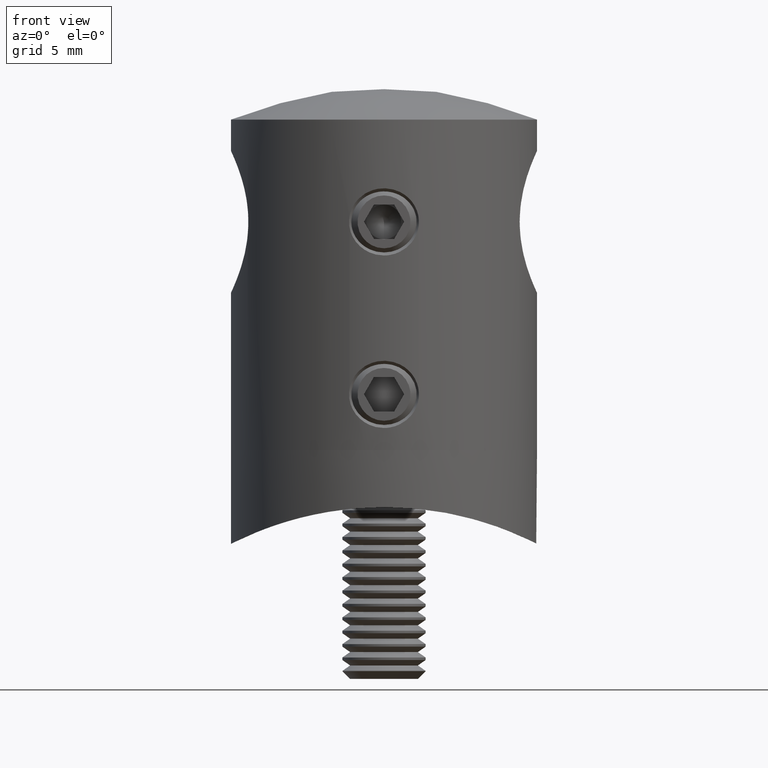
[diagram: clean part render]
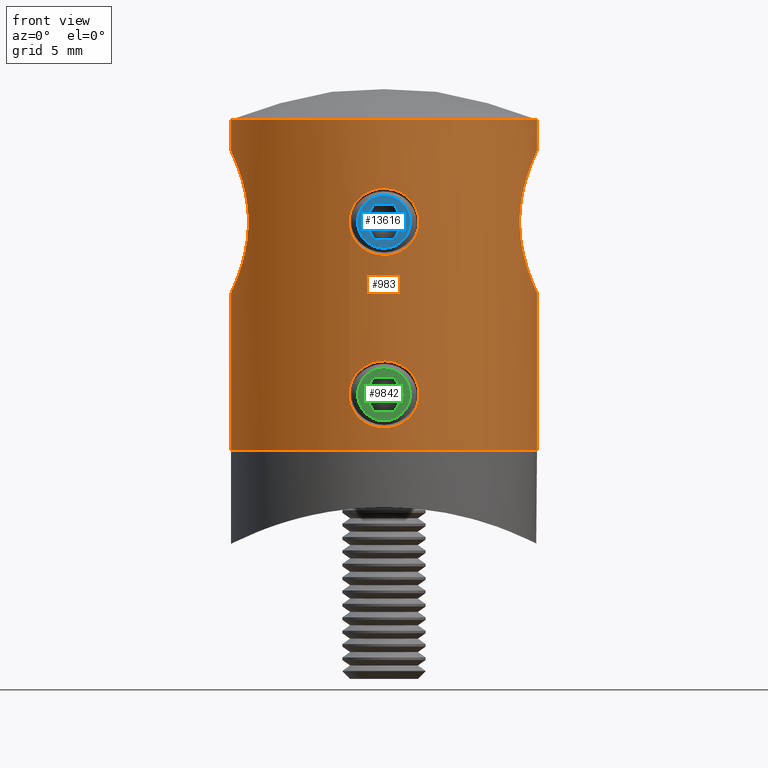
[diagram: same view with three faces highlighted in distinct colors, each labeled with its STEP entity id]
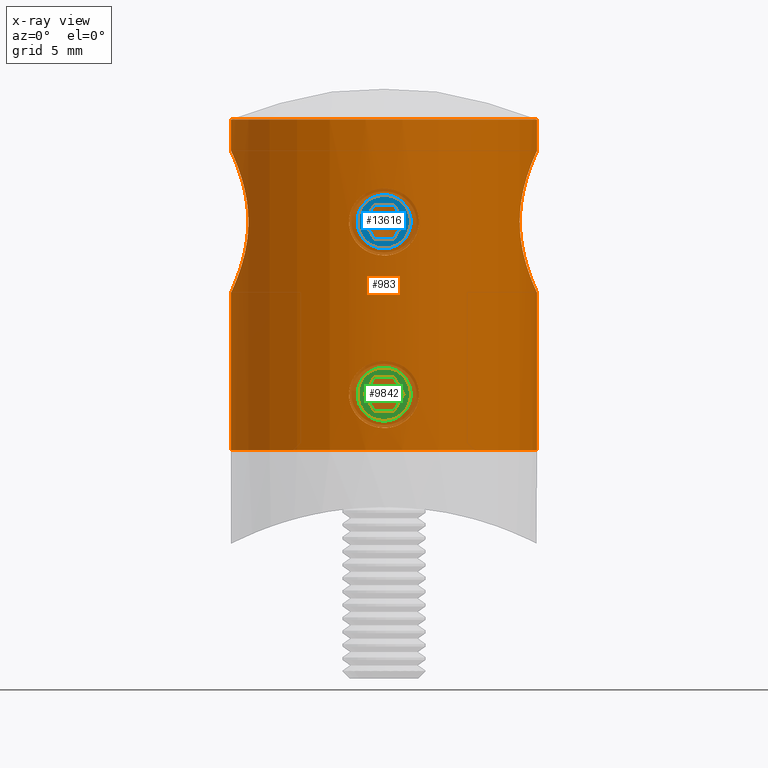
[diagram: x-ray of the same camera — body ghosted, the three highlighted faces saturated]
A machine part, front view with three faces highlighted in distinct colors.
The next image is the same camera in x-ray (body ghosted, the three faces saturated) — at least one of them is partly hidden behind the body in this view.
Their STEP definitions:

[orange] entity #983 — the highlighted cylindrical surface (bore or boss wall) has radius 11 mm, axis along (0, 0, 1).
#40 = CARTESIAN_POINT ( 'NONE',  ( -9.746435882187436000, -5.099704667917423600, 16.57715091522956600 ) ) ;
#68 = CARTESIAN_POINT ( 'NONE',  ( 10.79372047998855600, 2.126081526392296100, 11.76127184379781300 ) ) ;
#121 = CARTESIAN_POINT ( 'NONE',  ( -10.98461965845903200, -0.6696594642287685400, 21.46708344749502100 ) ) ;
#130 = CARTESIAN_POINT ( 'NONE',  ( 2.511799944583926100, -10.70938191707799400, 16.55668838989981500 ) ) ;
#193 = CARTESIAN_POINT ( 'NONE',  ( -10.92259533598678300, -1.344016255707060500, 11.46881049038182900 ) ) ;
#205 = CARTESIAN_POINT ( 'NONE',  ( 1.660782927847469700, -10.87454360747016800, 18.21873868081512500 ) ) ;
#224 = CARTESIAN_POINT ( 'NONE',  ( 10.87691252494812000, -1.670145597579503900, 21.23017820595980300 ) ) ;
#286 = CARTESIAN_POINT ( 'NONE',  ( -2.382856163137154800, -10.73900133749353000, 17.17981662011126800 ) ) ;
#299 = CARTESIAN_POINT ( 'NONE',  ( 10.47201491691117100, 3.376167339972384200, 12.56311429802452300 ) ) ;
#365 = CARTESIAN_POINT ( 'NONE',  ( -1.268443744548116500, -10.93091935411460000, 18.50864464349973900 ) ) ;
#439 = CARTESIAN_POINT ( 'NONE',  ( -1.996072047024378000, -10.81778173646242000, 14.92547899507782500 ) ) ;
#822 = CARTESIAN_POINT ( 'NONE',  ( 1.265772666088006400, -10.93117442415845100, 14.29018104766522700 ) ) ;
#947 = FACE_BOUND ( 'NONE', #16857, .T. ) ;
#983 = ADVANCED_FACE ( 'NONE', ( #947, #17832, #15587, #18950, #9661, #2907 ), #11925, .T. ) ;
#1020 = ORIENTED_EDGE ( 'NONE', *, *, #16173, .T. ) ;
#1175 = CARTESIAN_POINT ( 'NONE',  ( -2.463083399544349300, -10.72069121684273800, 4.472964312552125700 ) ) ;
#1252 = CARTESIAN_POINT ( 'NONE',  ( -1.397269774137160900, -10.91089534265097100, 1.993051909358202400 ) ) ;
#1326 = CARTESIAN_POINT ( 'NONE',  ( -2.511703974928243700, -10.70940442520010400, 3.842739291575714100 ) ) ;
#1399 = CARTESIAN_POINT ( 'NONE',  ( -2.382999229848468600, -10.73896813810681100, 3.220662270662221900 ) ) ;
#1483 = CARTESIAN_POINT ( 'NONE',  ( 2.256830909742726800, -10.76619328781119300, 5.071927192361033400 ) ) ;
#1612 = CARTESIAN_POINT ( 'NONE',  ( -10.99967404411871300, 0.3475679165322346200, 21.49929695674811800 ) ) ;
#1626 = CARTESIAN_POINT ( 'NONE',  ( -2.020667218593132300E-015, -10.99999999999999800, 13.98484490069484600 ) ) ;
#1633 = CARTESIAN_POINT ( 'NONE',  ( -2.020667218593132300E-015, -10.99999999999999800, 1.584844900694847100 ) ) ;
#1643 = CARTESIAN_POINT ( 'NONE',  ( 9.885833756099659200, -4.824245512483267700, 14.73718638957849000 ) ) ;
#1693 = CARTESIAN_POINT ( 'NONE',  ( -9.764554807653102100, 5.065479761543580900, 15.71864772819509100 ) ) ;
#1722 = CARTESIAN_POINT ( 'NONE',  ( 9.880785821988753900, -4.836366772746158600, 18.05286453897976900 ) ) ;
#1771 = CARTESIAN_POINT ( 'NONE',  ( -10.22938670084714000, 4.049654862654770100, 13.28228732040598100 ) ) ;
#1788 = CARTESIAN_POINT ( 'NONE',  ( 0.4897246382423631200, -10.98909321912860500, 1.631196561732932500 ) ) ;
#1795 = AXIS2_PLACEMENT_3D ( 'NONE', #6604, #8898, #21453 ) ;
#1797 = CARTESIAN_POINT ( 'NONE',  ( 10.55128804721513100, 3.122534710036636100, 12.35424311392541900 ) ) ;
#1853 = CARTESIAN_POINT ( 'NONE',  ( -10.55378527435345100, -3.114166653605242800, 20.45225437055679400 ) ) ;
#1877 = CARTESIAN_POINT ( 'NONE',  ( 10.23062083369497800, 4.046496105150160000, 19.52160426523856900 ) ) ;
#1930 = CARTESIAN_POINT ( 'NONE',  ( -10.00436061697045000, 4.575241178648824700, 14.12254123351117700 ) ) ;
#1946 = CARTESIAN_POINT ( 'NONE',  ( 2.511631889561162000, -10.70942133164945500, 16.23990702731718000 ) ) ;
#1958 = CARTESIAN_POINT ( 'NONE',  ( 9.831401816782660700, 4.934482580680001900, 15.06731954339826500 ) ) ;
#2020 = CARTESIAN_POINT ( 'NONE',  ( -2.179285043662281500, -10.78236625296701400, 15.18882321993868900 ) ) ;
#2033 = CARTESIAN_POINT ( 'NONE',  ( 10.47336877759368300, 3.371864480480710300, 20.24047110347592900 ) ) ;
#2084 = CARTESIAN_POINT ( 'NONE',  ( -10.00222700330179200, -4.579911297734634300, 14.13158646250897700 ) ) ;
#2094 = CARTESIAN_POINT ( 'NONE',  ( -2.382999229834640100, -10.73896813810979400, 15.62066227062434400 ) ) ;
#2169 = CARTESIAN_POINT ( 'NONE',  ( -0.8104466576801517800, -10.97117418874867300, 18.69149778061502700 ) ) ;
#2402 = VERTEX_POINT ( 'NONE', #17406 ) ;
#2604 = AXIS2_PLACEMENT_3D ( 'NONE', #12725, #12643, #9173 ) ;
#2648 = EDGE_LOOP ( 'NONE', ( #16279 ) ) ;
#2907 = FACE_OUTER_BOUND ( 'NONE', #10661, .T. ) ;
#2972 = CARTESIAN_POINT ( 'NONE',  ( -2.256864148927033100, -10.76618397735132300, 5.071739856433886500 ) ) ;
#3001 = CARTESIAN_POINT ( 'NONE',  ( -2.020667218593132300E-015, -10.99999999999999800, 13.98484490069484600 ) ) ;
#3050 = CARTESIAN_POINT ( 'NONE',  ( 1.660782927785467800, -10.87454360748031900, 5.818738680863162000 ) ) ;
#3065 = AXIS2_PLACEMENT_3D ( 'NONE', #5143, #19520, #6954 ) ;
#3131 = CARTESIAN_POINT ( 'NONE',  ( -2.087083062809130600, -10.80018908579545200, 5.343704459521158700 ) ) ;
#3211 = CARTESIAN_POINT ( 'NONE',  ( -0.3276201266150175500, -10.99632626431669300, 6.399832416815710800 ) ) ;
#3290 = CARTESIAN_POINT ( 'NONE',  ( -2.430626934630721900, -10.72814813956303400, 3.370817171176732100 ) ) ;
#3375 = CARTESIAN_POINT ( 'NONE',  ( 11.00000000000000000, -0.3420402686100476000, 11.30000000000000100 ) ) ;
#3427 = CARTESIAN_POINT ( 'NONE',  ( -9.768733347336896200, -5.056898271221757400, 17.08302200203814900 ) ) ;
#3439 = CARTESIAN_POINT ( 'NONE',  ( -0.6586619930911564700, -10.98452728325967300, 14.04785758938482100 ) ) ;
#3506 = CARTESIAN_POINT ( 'NONE',  ( -10.55213191267872700, 3.119896509840596200, 12.35200189701629700 ) ) ;
#3529 = CARTESIAN_POINT ( 'NONE',  ( 10.22735391402577700, -4.054721379485370000, 19.51095471163539200 ) ) ;
#3576 = CARTESIAN_POINT ( 'NONE',  ( -10.76752374769291600, -2.271502190894517900, 20.97854765344256100 ) ) ;
#3671 = CARTESIAN_POINT ( 'NONE',  ( 0.3311095054345719000, -10.99992139316568700, 18.81483076791868600 ) ) ;
#3676 = CARTESIAN_POINT ( 'NONE',  ( 1.265772666319474600, -10.93117442413812100, 1.890181047744562000 ) ) ;
#3684 = CARTESIAN_POINT ( 'NONE',  ( 10.98389058231152400, -0.6828063300958886500, 21.46551967963449000 ) ) ;
#3751 = CARTESIAN_POINT ( 'NONE',  ( 1.998357958369216600, -10.81735236367316800, 17.87152513571616200 ) ) ;
#3765 = CARTESIAN_POINT ( 'NONE',  ( 10.87989800168600500, 1.651396176960097800, 21.23691135796434500 ) ) ;
#3825 = CARTESIAN_POINT ( 'NONE',  ( 2.179889364258655400, -10.78223673683874400, 17.61001349837584600 ) ) ;
#3893 = CARTESIAN_POINT ( 'NONE',  ( -9.880766135392452300, -4.836382232452141500, 14.74751872209966700 ) ) ;
#3909 = CARTESIAN_POINT ( 'NONE',  ( -2.495562452213592400, -10.71322910456338400, 16.08336297108577600 ) ) ;
#3985 = CARTESIAN_POINT ( 'NONE',  ( 0.6619940356628312200, -10.98427163761045800, 18.75101510548229200 ) ) ;
#4132 = VERTEX_POINT ( 'NONE', #6312 ) ;
#4135 = CIRCLE ( 'NONE', #2604, 11.00000000000000000 ) ;
#4202 = CARTESIAN_POINT ( 'NONE',  ( 0.9623838866416711800, -10.95781991341035100, 14.16916257412396400 ) ) ;
#4353 = CARTESIAN_POINT ( 'NONE',  ( 0.6509923734586801100, -10.98190638562795800, 14.06202588692813500 ) ) ;
#4779 = CARTESIAN_POINT ( 'NONE',  ( -1.543197030239268600, -10.89377639715053700, 5.931762059629532400 ) ) ;
#4856 = CARTESIAN_POINT ( 'NONE',  ( -2.320240922396904300, -10.75251050043824500, 3.075104445097748900 ) ) ;
#4939 = CARTESIAN_POINT ( 'NONE',  ( -2.179285043678576000, -10.78236625296386300, 2.788823219965029600 ) ) ;
#4965 = VERTEX_POINT ( 'NONE', #6068 ) ;
#5018 = CARTESIAN_POINT ( 'NONE',  ( 1.777126563584013900, -10.85549727912102600, 5.706738476233899100 ) ) ;
#5027 = CARTESIAN_POINT ( 'NONE',  ( 10.69790093024885600, -2.576078500588502500, 20.81407917215978300 ) ) ;
#5060 = EDGE_LOOP ( 'NONE', ( #1020 ) ) ;
#5094 = CARTESIAN_POINT ( 'NONE',  ( -2.087678545343330000, -10.80007399471471700, 2.657151107508259000 ) ) ;
#5143 = CARTESIAN_POINT ( 'NONE',  ( 0.0000000000000000000, 0.0000000000000000000, 23.74878637916747000 ) ) ;
#5151 = CARTESIAN_POINT ( 'NONE',  ( -10.98409477427311600, 0.6774680798639229900, 11.33405321981837200 ) ) ;
#5202 = ORIENTED_EDGE ( 'NONE', *, *, #6223, .T. ) ;
#5222 = CARTESIAN_POINT ( 'NONE',  ( -9.750955816283152400, -5.091093399825953500, 16.74569809806016000 ) ) ;
#5236 = CARTESIAN_POINT ( 'NONE',  ( -1.115993498471008700, -10.94431255610991500, 14.23051304831070000 ) ) ;
#5243 = CARTESIAN_POINT ( 'NONE',  ( 2.318934602487287200, -10.75279230290379400, 3.072080269349922100 ) ) ;
#5252 = CARTESIAN_POINT ( 'NONE',  ( 10.07530021768211800, -4.419092927928361700, 13.83261717824195400 ) ) ;
#5302 = CARTESIAN_POINT ( 'NONE',  ( -10.92203846952601900, 1.349500825788746900, 21.32996568247475400 ) ) ;
#5325 = CARTESIAN_POINT ( 'NONE',  ( 10.47088620841679000, -3.379449766977662900, 20.23365674153711100 ) ) ;
#5376 = CARTESIAN_POINT ( 'NONE',  ( -9.746609327651651000, 5.099373206684540500, 16.05260251348449400 ) ) ;
#5405 = CARTESIAN_POINT ( 'NONE',  ( 10.07469812271536800, 4.420400662356026800, 13.83512119538370500 ) ) ;
#5451 = CARTESIAN_POINT ( 'NONE',  ( -9.763479344190180600, -5.067548827356644900, 15.73283853468677900 ) ) ;
#5462 = CARTESIAN_POINT ( 'NONE',  ( -2.430803093581094000, -10.72810763096586800, 17.02839688706989600 ) ) ;
#5479 = CARTESIAN_POINT ( 'NONE',  ( 10.92420653231055500, 1.331174097726976100, 21.33474963736256000 ) ) ;
#5540 = CARTESIAN_POINT ( 'NONE',  ( -2.463094693421274500, -10.72068862206341100, 15.92709007112410400 ) ) ;
#5554 = CARTESIAN_POINT ( 'NONE',  ( 10.30907895527403500, 3.845060912577607400, 13.03314621997213000 ) ) ;
#5603 = CARTESIAN_POINT ( 'NONE',  ( -10.69623310193279800, -2.571608090004069900, 11.99266754206867500 ) ) ;
#5618 = CARTESIAN_POINT ( 'NONE',  ( 2.318934602487287200, -10.75279230290379400, 15.47208026934992200 ) ) ;
#5696 = CARTESIAN_POINT ( 'NONE',  ( -0.6530340314932273600, -10.98180644577005100, 18.73754400069448100 ) ) ;
#5769 = CARTESIAN_POINT ( 'NONE',  ( -1.892943344172693700, -10.83654561251257900, 17.99533139784182700 ) ) ;
#6006 = CARTESIAN_POINT ( 'NONE',  ( 1.890372269886392700, -10.83698242449020200, 14.80201164964647400 ) ) ;
#6068 = CARTESIAN_POINT ( 'NONE',  ( 10.99999999999999600, 0.0000000000000000000, 23.74878637916747000 ) ) ;
#6195 = CARTESIAN_POINT ( 'NONE',  ( -0.3315329495189393000, -10.99999999999999600, 1.584844930053871600 ) ) ;
#6223 = EDGE_CURVE ( 'NONE', #4132, #4132, #17141, .T. ) ;
#6312 = CARTESIAN_POINT ( 'NONE',  ( 11.00000000000000000, 0.0000000000000000000, 11.29999999999999700 ) ) ;
#6510 = CARTESIAN_POINT ( 'NONE',  ( -2.495562452211827600, -10.71322910456378900, 3.683362971071481300 ) ) ;
#6583 = CARTESIAN_POINT ( 'NONE',  ( 0.002621827913299337800, -10.99999968754628400, 6.415153783528235300 ) ) ;
#6604 = CARTESIAN_POINT ( 'NONE',  ( 0.0000000000000000000, 0.0000000000000000000, 25.99999999999999600 ) ) ;
#6632 = VERTEX_POINT ( 'NONE', #3001 ) ;
#6666 = CARTESIAN_POINT ( 'NONE',  ( -2.257482614945340400, -10.76605286276967800, 2.929546619533276000 ) ) ;
#6745 = CARTESIAN_POINT ( 'NONE',  ( 2.179889364258604400, -10.78223673683875500, 5.210013498370140700 ) ) ;
#6828 = CARTESIAN_POINT ( 'NONE',  ( 2.495297978060744700, -10.71329013739285200, 3.682043413930197400 ) ) ;
#6839 = CARTESIAN_POINT ( 'NONE',  ( 10.69954747067740900, -2.569226743090022400, 11.98195554385583300 ) ) ;
#6905 = CARTESIAN_POINT ( 'NONE',  ( 0.1643935056628486900, -11.00000000000000000, 1.584844886136918000 ) ) ;
#6914 = CARTESIAN_POINT ( 'NONE',  ( 10.98409477427311900, -0.6774680798639226600, 11.33405321981837200 ) ) ;
#6954 = DIRECTION ( 'NONE',  ( 1.000000000000000000, 0.0000000000000000000, 0.0000000000000000000 ) ) ;
#6961 = CARTESIAN_POINT ( 'NONE',  ( -10.22735391402577100, 4.054721379485367400, 19.51095471163538200 ) ) ;
#6985 = CARTESIAN_POINT ( 'NONE',  ( 10.92358240342935700, -1.335907363905573600, 11.46663083745702500 ) ) ;
#7032 = CARTESIAN_POINT ( 'NONE',  ( -10.47192994644006200, 3.376204713791207900, 12.56352283884599100 ) ) ;
#7060 = CARTESIAN_POINT ( 'NONE',  ( 9.750431221126522300, -5.092096281612857200, 16.73088962366718100 ) ) ;
#7111 = CARTESIAN_POINT ( 'NONE',  ( -9.750431221126522300, 5.092096281612858100, 16.73088962366718100 ) ) ;
#7137 = CARTESIAN_POINT ( 'NONE',  ( 9.913515838807216000, -4.767307365066426600, 14.58060640433451600 ) ) ;
#7189 = CARTESIAN_POINT ( 'NONE',  ( -10.69790093024884900, 2.576078500588504300, 20.81407917215977200 ) ) ;
#7217 = CARTESIAN_POINT ( 'NONE',  ( 9.763479344190173500, 5.067548827356644900, 15.73283853468677900 ) ) ;
#7270 = CARTESIAN_POINT ( 'NONE',  ( -9.746124043521533100, 5.100300603888077200, 16.55970841759691200 ) ) ;
#7283 = CARTESIAN_POINT ( 'NONE',  ( -2.319860156032100400, -10.75259265742242600, 17.32577823827256900 ) ) ;
#7293 = CARTESIAN_POINT ( 'NONE',  ( 10.55378527435345500, 3.114166653605242800, 20.45225437055679100 ) ) ;
#7358 = CARTESIAN_POINT ( 'NONE',  ( 2.431469541523701300, -10.72795581613253500, 17.02585049196845500 ) ) ;
#7434 = CARTESIAN_POINT ( 'NONE',  ( 0.002621827913309108200, -10.99999968754628400, 18.81515378352823500 ) ) ;
#7515 = CARTESIAN_POINT ( 'NONE',  ( -2.087678545343330000, -10.80007399471471700, 15.05715110750825800 ) ) ;
#7592 = CARTESIAN_POINT ( 'NONE',  ( 1.116343252776377500, -10.94426300031195800, 18.56924477539900700 ) ) ;
#8331 = CARTESIAN_POINT ( 'NONE',  ( -1.996185883738268000, -10.81775451556606900, 5.474240922415229500 ) ) ;
#8409 = CARTESIAN_POINT ( 'NONE',  ( -2.511729057886776100, -10.70939854239878000, 4.157936335757463000 ) ) ;
#8491 = CARTESIAN_POINT ( 'NONE',  ( -0.8104466578491685800, -10.97117418873381900, 6.291497780559771200 ) ) ;
#8566 = CARTESIAN_POINT ( 'NONE',  ( 2.463499994663159100, -10.72059549541417000, 4.470953949805736900 ) ) ;
#8576 = CARTESIAN_POINT ( 'NONE',  ( 10.55213191267872500, -3.119896509840596200, 12.35200189701630300 ) ) ;
#8643 = CARTESIAN_POINT ( 'NONE',  ( -1.776361239528236000, -10.85562254072522800, 5.707474951774919700 ) ) ;
#8720 = CARTESIAN_POINT ( 'NONE',  ( 2.178857699620390800, -10.78245327803794100, 2.788117446777010700 ) ) ;
#8732 = CARTESIAN_POINT ( 'NONE',  ( 10.31115410062419500, -3.839293709232858300, 13.02699850404312400 ) ) ;
#8782 = CARTESIAN_POINT ( 'NONE',  ( -10.07729814196231100, -4.414498332747689900, 18.97502395870773700 ) ) ;
#8860 = CARTESIAN_POINT ( 'NONE',  ( -10.30987621817060400, 3.842732241926132300, 19.76912654204614500 ) ) ;
#8879 = CARTESIAN_POINT ( 'NONE',  ( 2.381829622718711000, -10.73922843645587700, 3.217404884529632800 ) ) ;
#8888 = CARTESIAN_POINT ( 'NONE',  ( 9.780729526921803100, -5.033756045906780100, 17.23636692954554300 ) ) ;
#8898 = DIRECTION ( 'NONE',  ( -0.0000000000000000000, -0.0000000000000000000, 1.000000000000000000 ) ) ;
#8937 = CARTESIAN_POINT ( 'NONE',  ( -10.70022606909253100, -2.566238421094046100, 20.81964023380005500 ) ) ;
#8965 = CARTESIAN_POINT ( 'NONE',  ( 10.66112523159967700, 2.713002840732187300, 12.07834423683121400 ) ) ;
#9014 = CARTESIAN_POINT ( 'NONE',  ( -9.913515838807221300, 4.767307365066429300, 14.58060640433452400 ) ) ;
#9088 = CARTESIAN_POINT ( 'NONE',  ( -9.767782344364500000, 5.058733202320079100, 17.06944071582966800 ) ) ;
#9101 = CARTESIAN_POINT ( 'NONE',  ( -1.533328306870229700, -10.89347143110832900, 14.48063127000943600 ) ) ;
#9173 = DIRECTION ( 'NONE',  ( 1.000000000000000000, 0.0000000000000000000, 0.0000000000000000000 ) ) ;
#9177 = CARTESIAN_POINT ( 'NONE',  ( 2.463009590041774600, -10.72070817434008000, 15.92668043077660700 ) ) ;
#9191 = CARTESIAN_POINT ( 'NONE',  ( 9.833678025644266200, 4.929959429588495600, 17.74888431453495100 ) ) ;
#9248 = CARTESIAN_POINT ( 'NONE',  ( -10.87810309732536700, -1.662940417430558200, 11.56712141430042900 ) ) ;
#9262 = CARTESIAN_POINT ( 'NONE',  ( 2.463499994663159100, -10.72059549541417000, 16.87095394980573500 ) ) ;
#9275 = CARTESIAN_POINT ( 'NONE',  ( 9.883215163198309800, 4.831377203079142600, 18.06668807489310100 ) ) ;
#9339 = CARTESIAN_POINT ( 'NONE',  ( -2.177980241902248300, -10.78262365602053500, 17.61316799658935400 ) ) ;
#9398 = CARTESIAN_POINT ( 'NONE',  ( -10.76247523156004800, -2.278529707840948800, 11.83425253284901800 ) ) ;
#9409 = CARTESIAN_POINT ( 'NONE',  ( -1.777212278540741600, -10.85548324659036000, 14.69334404728969000 ) ) ;
#9485 = CARTESIAN_POINT ( 'NONE',  ( 2.178857699620404100, -10.78245327803794000, 15.18811744677702300 ) ) ;
#9647 = CARTESIAN_POINT ( 'NONE',  ( 0.8106894969185034500, -10.97114265803630100, 14.10865333735333300 ) ) ;
#9661 = FACE_OUTER_BOUND ( 'NONE', #12363, .T. ) ;
#10135 = CARTESIAN_POINT ( 'NONE',  ( 0.9648935137385287200, -10.95759921274479100, 6.229834885426770400 ) ) ;
#10211 = CARTESIAN_POINT ( 'NONE',  ( -0.1616220107861330000, -11.00003883473656800, 6.415315291332948500 ) ) ;
#10288 = CARTESIAN_POINT ( 'NONE',  ( 1.399033590713174800, -10.91066932007638700, 6.005811658922017800 ) ) ;
#10365 = CARTESIAN_POINT ( 'NONE',  ( 2.511799944583926100, -10.70938191707799400, 4.156688389902742000 ) ) ;
#10380 = CARTESIAN_POINT ( 'NONE',  ( 10.55011019610968500, -3.126729857943598500, 20.44275101567398400 ) ) ;
#10447 = CARTESIAN_POINT ( 'NONE',  ( -1.261211241404091900, -10.92831925419361200, 1.905472548706967000 ) ) ;
#10537 = CARTESIAN_POINT ( 'NONE',  ( 9.815636342375485800, -4.965348642925767400, 15.22371585600221900 ) ) ;
#10581 = CARTESIAN_POINT ( 'NONE',  ( -10.69954747067740900, 2.569226743090020600, 11.98195554385582900 ) ) ;
#10598 = CARTESIAN_POINT ( 'NONE',  ( 1.774878405260975000, -10.85586508052390200, 2.291099913721534000 ) ) ;
#10606 = CARTESIAN_POINT ( 'NONE',  ( 11.00000000000000000, -1.084202172485504400E-016, 11.29999999999999900 ) ) ;
#10609 = EDGE_CURVE ( 'NONE', #4965, #4965, #21047, .T. ) ;
#10655 = CARTESIAN_POINT ( 'NONE',  ( -10.99999999999999600, 0.3420402686100470500, 11.29999999999999900 ) ) ;
#10661 = EDGE_LOOP ( 'NONE', ( #16242 ) ) ;
#10733 = CARTESIAN_POINT ( 'NONE',  ( -10.87989800168600500, -1.651396176960101300, 21.23691135796435600 ) ) ;
#10758 = CARTESIAN_POINT ( 'NONE',  ( 10.70022606909253500, 2.566238421094041200, 20.81964023380006900 ) ) ;
#10814 = CARTESIAN_POINT ( 'NONE',  ( -10.99999999999999600, 1.897353801849632800E-016, 11.29999999999999900 ) ) ;
#10827 = CARTESIAN_POINT ( 'NONE',  ( -0.9635496633443911800, -10.95771746515983500, 14.16962789533540800 ) ) ;
#10839 = CARTESIAN_POINT ( 'NONE',  ( 9.782123209470828600, 5.031053208532882500, 17.25264343705779500 ) ) ;
#10890 = CARTESIAN_POINT ( 'NONE',  ( -9.880785821988753900, 4.836366772746157700, 18.05286453897976500 ) ) ;
#10903 = CARTESIAN_POINT ( 'NONE',  ( 2.495530447802617200, -10.71323517469580200, 16.71605740764301700 ) ) ;
#10917 = CARTESIAN_POINT ( 'NONE',  ( 11.00000000000000000, -1.084202172485504400E-016, 11.29999999999999900 ) ) ;
#10969 = CARTESIAN_POINT ( 'NONE',  ( -10.55128804721514000, -3.122534710036641400, 12.35424311392542600 ) ) ;
#10981 = CARTESIAN_POINT ( 'NONE',  ( 2.430721202022829700, -10.72812621128730400, 15.77131744761732800 ) ) ;
#10998 = CARTESIAN_POINT ( 'NONE',  ( 10.92259533598678600, 1.344016255707064300, 11.46881049038183600 ) ) ;
#11057 = CARTESIAN_POINT ( 'NONE',  ( -1.397269774137160900, -10.91089534265097100, 14.39305190935820100 ) ) ;
#11073 = CARTESIAN_POINT ( 'NONE',  ( 10.98362801482573100, 0.6851161954445362800, 11.33505918355281100 ) ) ;
#11134 = CARTESIAN_POINT ( 'NONE',  ( -1.996185883716013400, -10.81775451557036900, 17.87424092245295900 ) ) ;
#11196 = CARTESIAN_POINT ( 'NONE',  ( -10.66112523159967500, -2.713002840732189600, 12.07834423683121400 ) ) ;
#11209 = CARTESIAN_POINT ( 'NONE',  ( 1.777126563584013900, -10.85549727912102600, 18.10673847623389300 ) ) ;
#11871 = EDGE_CURVE ( 'NONE', #21266, #21266, #4135, .T. ) ;
#11925 = CYLINDRICAL_SURFACE ( 'NONE', #1795, 10.99999999999999800 ) ;
#11965 = CARTESIAN_POINT ( 'NONE',  ( 1.893470199382560000, -10.83645095076173300, 5.594738271604635200 ) ) ;
#12041 = CARTESIAN_POINT ( 'NONE',  ( -2.430803093581094000, -10.72810763096586800, 4.628396887069898800 ) ) ;
#12122 = CARTESIAN_POINT ( 'NONE',  ( 1.263044276341072700, -10.92810671215594800, 6.093506342078076600 ) ) ;
#12193 = CARTESIAN_POINT ( 'NONE',  ( -2.495363705507605000, -10.71327480271960800, 4.317531738034352500 ) ) ;
#12202 = CARTESIAN_POINT ( 'NONE',  ( 10.76607921010692700, -2.278039284623406800, 11.82485560310605500 ) ) ;
#12272 = CARTESIAN_POINT ( 'NONE',  ( -0.4903270790838651400, -10.98906635504204500, 6.368688208749404100 ) ) ;
#12357 = CARTESIAN_POINT ( 'NONE',  ( 9.746124043521531300, -5.100300603888076300, 16.55970841759690500 ) ) ;
#12363 = EDGE_LOOP ( 'NONE', ( #15511 ) ) ;
#12402 = CARTESIAN_POINT ( 'NONE',  ( -10.00294675193620900, 4.578365243016970800, 18.67177825640488500 ) ) ;
#12424 = CARTESIAN_POINT ( 'NONE',  ( 0.3284569029660139900, -10.99628005263193000, 1.600367236529137300 ) ) ;
#12496 = CARTESIAN_POINT ( 'NONE',  ( 0.6509923735187122000, -10.98190638562528300, 1.662025886936727500 ) ) ;
#12503 = CARTESIAN_POINT ( 'NONE',  ( 9.836864287762125500, -4.923327614744372300, 15.05868010317692600 ) ) ;
#12568 = VERTEX_POINT ( 'NONE', #22176 ) ;
#12574 = CARTESIAN_POINT ( 'NONE',  ( 0.9623838866416614100, -10.95781991341035100, 1.769162574123964900 ) ) ;
#12580 = CARTESIAN_POINT ( 'NONE',  ( 10.00222700330179600, 4.579911297734634300, 14.13158646250898800 ) ) ;
#12643 = DIRECTION ( 'NONE',  ( -0.0000000000000000000, -0.0000000000000000000, 1.000000000000000000 ) ) ;
#12661 = CARTESIAN_POINT ( 'NONE',  ( 11.00031598307091900, 0.3266202780843043800, 21.50068153325095100 ) ) ;
#12716 = CARTESIAN_POINT ( 'NONE',  ( -9.883215163198309800, -4.831377203079143500, 18.06668807489311500 ) ) ;
#12725 = CARTESIAN_POINT ( 'NONE',  ( 0.0000000000000000000, 0.0000000000000000000, 0.0000000000000000000 ) ) ;
#12728 = CARTESIAN_POINT ( 'NONE',  ( 1.399033590713174800, -10.91066932007638700, 18.40581165892201200 ) ) ;
#12742 = CARTESIAN_POINT ( 'NONE',  ( 10.99967404411871500, -0.3475679165322339000, 21.49929695674811500 ) ) ;
#12791 = CARTESIAN_POINT ( 'NONE',  ( -10.99999999999999800, -0.3420402686100491000, 11.29999999999999900 ) ) ;
#12806 = CARTESIAN_POINT ( 'NONE',  ( 2.320207892953276600, -10.75251762767572900, 17.32497216206398200 ) ) ;
#12885 = CARTESIAN_POINT ( 'NONE',  ( -2.256864148927046000, -10.76618397735132100, 17.47173985643386700 ) ) ;
#12965 = CARTESIAN_POINT ( 'NONE',  ( -0.9631123533028067600, -10.95775591053731500, 18.63054673490993100 ) ) ;
#13040 = CARTESIAN_POINT ( 'NONE',  ( 1.893470199320557800, -10.83645095077188500, 17.99473827165266100 ) ) ;
#13101 = CARTESIAN_POINT ( 'NONE',  ( -10.99999999999999600, 1.897353801849632800E-016, 11.29999999999999900 ) ) ;
#13346 = CARTESIAN_POINT ( 'NONE',  ( 1.543890676010139400, -10.89363039259130200, 14.46927644187164600 ) ) ;
#13767 = CARTESIAN_POINT ( 'NONE',  ( -2.382856163137168100, -10.73900133749352800, 4.779816620111248000 ) ) ;
#13843 = CARTESIAN_POINT ( 'NONE',  ( 1.535022905085276800, -10.89323192799682400, 5.918116975765959100 ) ) ;
#13921 = CARTESIAN_POINT ( 'NONE',  ( -2.319860156032100400, -10.75259265742242600, 4.925778238272567200 ) ) ;
#13999 = CARTESIAN_POINT ( 'NONE',  ( -2.511716516407509900, -10.70940148379944100, 4.000337813666588400 ) ) ;
#14072 = CARTESIAN_POINT ( 'NONE',  ( -1.777212278540741600, -10.85548324659036000, 2.293344047289692400 ) ) ;
#14232 = CARTESIAN_POINT ( 'NONE',  ( 9.746609327651654600, -5.099373206684544100, 16.05260251348448400 ) ) ;
#14287 = CARTESIAN_POINT ( 'NONE',  ( -10.87691252494811600, 1.670145597579503200, 21.23017820595980600 ) ) ;
#14319 = CARTESIAN_POINT ( 'NONE',  ( 10.00294675193621100, -4.578365243016970800, 18.67177825640489200 ) ) ;
#14367 = CARTESIAN_POINT ( 'NONE',  ( -10.07413874253476000, 4.421680918401315300, 18.96272170532579100 ) ) ;
#14394 = CARTESIAN_POINT ( 'NONE',  ( 10.76247523156004400, 2.278529707840944300, 11.83425253284901400 ) ) ;
#14446 = CARTESIAN_POINT ( 'NONE',  ( -9.745983956010393400, -5.100568316517894600, 16.07184845647866600 ) ) ;
#14461 = CARTESIAN_POINT ( 'NONE',  ( 2.089123661313935900, -10.79979455025595500, 17.74076931704600600 ) ) ;
#14466 = CARTESIAN_POINT ( 'NONE',  ( 2.256039582255863900, -10.76635616935171300, 2.926755654170211800 ) ) ;
#14472 = CARTESIAN_POINT ( 'NONE',  ( 10.87810309732537600, 1.662940417430554000, 11.56712141430042700 ) ) ;
#14525 = CARTESIAN_POINT ( 'NONE',  ( -11.00031598307092100, -0.3266202780843061600, 21.50068153325095800 ) ) ;
#14539 = CARTESIAN_POINT ( 'NONE',  ( -1.776361239528236000, -10.85562254072522800, 18.10747495177491800 ) ) ;
#14551 = CARTESIAN_POINT ( 'NONE',  ( 9.745983956010393400, 5.100568316517894600, 16.07184845647866600 ) ) ;
#14617 = CARTESIAN_POINT ( 'NONE',  ( -2.511703974928243700, -10.70940442520010400, 16.24273929157860500 ) ) ;
#14633 = CARTESIAN_POINT ( 'NONE',  ( 11.00000000000000200, 0.3420402686100437200, 11.29999999999999700 ) ) ;
#14686 = CARTESIAN_POINT ( 'NONE',  ( -10.22777535093213300, -4.053652137328402500, 13.28769383773697000 ) ) ;
#14700 = CARTESIAN_POINT ( 'NONE',  ( -1.892899697437106800, -10.83654340792404500, 14.80472538099371200 ) ) ;
#14766 = CARTESIAN_POINT ( 'NONE',  ( -10.30907895527403900, -3.845060912577609200, 13.03314621997213000 ) ) ;
#14777 = CARTESIAN_POINT ( 'NONE',  ( -0.1616220108473223100, -11.00003883473658200, 18.81531529133300400 ) ) ;
#15001 = CARTESIAN_POINT ( 'NONE',  ( 1.774878405260975000, -10.85586508052390200, 14.69109991372153200 ) ) ;
#15076 = CARTESIAN_POINT ( 'NONE',  ( 0.4897246382423631200, -10.98909321912860500, 14.03119656173292800 ) ) ;
#15151 = EDGE_LOOP ( 'NONE', ( #5202 ) ) ;
#15511 = ORIENTED_EDGE ( 'NONE', *, *, #10609, .F. ) ;
#15554 = B_SPLINE_CURVE_WITH_KNOTS ( 'NONE', 3,
 ( #10814, #10655, #5151, #23219, #17749, #21645, #10581, #3506, #7032, #16023, #1771, #19844, #1930, #9014, #16100, #23140, #17825, #1693, #5376, #7270, #7111, #9088, #15946, #19609, #10890, #12402, #14367, #6961, #8860, #21415, #21335, #7189, #17907, #14287, #5302, #19683, #1612, #14525, #121, #16252, #10733, #3576, #8937, #1853, #21491, #23295, #16181, #8782, #17983, #12716, #19769, #21570, #3427, #5222, #40, #14446, #5451, #18057, #3893, #2084, #21951, #14686, #14766, #16489, #10969, #11196, #5603, #9398, #21724, #9248, #193, #21874, #12791, #13101 ),
 .UNSPECIFIED., .T., .F.,
 ( 4, 2, 2, 2, 2, 2, 2, 2, 2, 2, 2, 2, 2, 2, 2, 2, 2, 2, 2, 2, 2, 2, 2, 2, 2, 2, 2, 2, 2, 2, 2, 2, 2, 2, 2, 2, 4 ),
 ( 0.0000000000000000000, 0.001010597652588613400, 0.002021195305177226700, 0.003031792957765840300, 0.004042390610354453500, 0.005052988262943067100, 0.006063585915531680700, 0.006568884741825987500, 0.007074183568120294200, 0.008084781220708912200, 0.008590080047003219000, 0.009095378873297522300, 0.01010597652588613100, 0.01111657417847473900, 0.01212717183106334700, 0.01313776948365195400, 0.01414836713624056200, 0.01515896478882917100, 0.01616956244141777900, 0.01718016009400638600, 0.01819075774659499300, 0.01920135539918359900, 0.02021195305177220200, 0.02122255070436081200, 0.02223314835694942600, 0.02324374600953803300, 0.02374904483583233800, 0.02425434366212663900, 0.02526494131471526000, 0.02627553896730387000, 0.02728613661989248400, 0.02829673427248109700, 0.02930733192506971100, 0.02981263075136401600, 0.03031792957765832400, 0.03132852723024694100, 0.03233912488283555800 ),
 .UNSPECIFIED. ) ;
#15580 = CARTESIAN_POINT ( 'NONE',  ( -1.661524859658452900, -10.87442308525437100, 2.181962713599229900 ) ) ;
#15587 = FACE_BOUND ( 'NONE', #5060, .T. ) ;
#15661 = CARTESIAN_POINT ( 'NONE',  ( -0.6530340315527127800, -10.98180644576739700, 6.337544000683097400 ) ) ;
#15730 = EDGE_CURVE ( 'NONE', #12568, #12568, #15982, .T. ) ;
#15737 = CARTESIAN_POINT ( 'NONE',  ( 0.3311095053121640400, -10.99992139316571600, 6.414830767918807900 ) ) ;
#15815 = CARTESIAN_POINT ( 'NONE',  ( 1.998357958369267700, -10.81735236367315700, 5.471525135721878800 ) ) ;
#15823 = CARTESIAN_POINT ( 'NONE',  ( 10.07413874253476000, -4.421680918401317100, 18.96272170532579100 ) ) ;
#15895 = CARTESIAN_POINT ( 'NONE',  ( -0.9635496633443911800, -10.95771746515983500, 1.769627895335405900 ) ) ;
#15946 = CARTESIAN_POINT ( 'NONE',  ( -9.780729526921806600, 5.033756045906779200, 17.23636692954555400 ) ) ;
#15982 = B_SPLINE_CURVE_WITH_KNOTS ( 'NONE', 3,
 ( #20813, #6195, #18791, #15895, #19327, #10447, #1252, #19247, #15580, #14072, #20968, #19176, #5094, #4939, #6666, #4856, #1399, #3290, #22764, #6510, #1326, #13999, #8409, #12193, #1175, #12041, #13767, #13921, #2972, #19091, #3131, #8331, #23000, #8643, #4779, #21202, #17380, #8491, #15661, #12272, #3211, #10211, #6583, #15737, #17534, #10135, #21045, #12122, #10288, #13843, #3050, #5018, #11965, #15815, #22844, #6745, #1483, #17460, #20894, #21122, #8566, #22691, #10365, #22922, #17613, #6828, #19399, #23159, #8879, #5243, #14466, #8720, #17845, #23312, #19546, #10598, #19786, #3676, #12574, #23082, #12496, #1788, #12424, #6905, #1633 ),
 .UNSPECIFIED., .T., .F.,
 ( 4, 3, 3, 3, 3, 3, 3, 3, 3, 3, 3, 3, 3, 3, 3, 3, 3, 3, 3, 3, 3, 3, 3, 3, 3, 3, 3, 3, 4 ),
 ( 0.0000000000000000000, 0.03571428571428571200, 0.07142857142857142500, 0.1071428571428571400, 0.1428571428571428500, 0.1785714285714285800, 0.2142857142857142700, 0.2500000000000000000, 0.2857142857142857000, 0.3214285714285714500, 0.3571428571428571500, 0.3928571428571428500, 0.4285714285714285500, 0.4642857142857143000, 0.5000000000000000000, 0.5357142857142857000, 0.5714285714285714000, 0.6071428571428571000, 0.6428571428571429000, 0.6785714285714286000, 0.7142857142857143000, 0.7500000000000000000, 0.7857142857142857000, 0.8214285714285714000, 0.8571428571428571000, 0.8928571428571429000, 0.9285714285714286000, 0.9642857142857143000, 1.000000000000000000 ),
 .UNSPECIFIED. ) ;
#16023 = CARTESIAN_POINT ( 'NONE',  ( -10.31115410062419500, 3.839293709232861000, 13.02699850404312800 ) ) ;
#16100 = CARTESIAN_POINT ( 'NONE',  ( -9.885833756099657400, 4.824245512483266800, 14.73718638957849000 ) ) ;
#16131 = CARTESIAN_POINT ( 'NONE',  ( 10.30987621817060100, -3.842732241926132300, 19.76912654204613400 ) ) ;
#16173 = EDGE_CURVE ( 'NONE', #2402, #2402, #15554, .T. ) ;
#16181 = CARTESIAN_POINT ( 'NONE',  ( -10.23062083369498000, -4.046496105150158200, 19.52160426523857600 ) ) ;
#16203 = CARTESIAN_POINT ( 'NONE',  ( 10.76524624909549400, -2.281684813646024600, 20.97317419629084500 ) ) ;
#16242 = ORIENTED_EDGE ( 'NONE', *, *, #11871, .T. ) ;
#16252 = CARTESIAN_POINT ( 'NONE',  ( -10.92420653231054900, -1.331174097726975900, 21.33474963736254500 ) ) ;
#16263 = CARTESIAN_POINT ( 'NONE',  ( 2.256830909749577800, -10.76619328780971300, 17.47192719234511700 ) ) ;
#16279 = ORIENTED_EDGE ( 'NONE', *, *, #18167, .T. ) ;
#16282 = CARTESIAN_POINT ( 'NONE',  ( 9.750955816283148900, 5.091093399825955300, 16.74569809806015600 ) ) ;
#16343 = CARTESIAN_POINT ( 'NONE',  ( -2.320240922396904300, -10.75251050043824500, 15.47510444509774700 ) ) ;
#16360 = CARTESIAN_POINT ( 'NONE',  ( 9.880766135392448700, 4.836382232452138800, 14.74751872209966700 ) ) ;
#16425 = CARTESIAN_POINT ( 'NONE',  ( 2.381829622713069700, -10.73922843645709300, 15.61740488451371400 ) ) ;
#16489 = CARTESIAN_POINT ( 'NONE',  ( -10.47201491691116500, -3.376167339972387300, 12.56311429802451800 ) ) ;
#16499 = CARTESIAN_POINT ( 'NONE',  ( -1.543197030239320100, -10.89377639715052800, 18.33176205964109700 ) ) ;
#16513 = CARTESIAN_POINT ( 'NONE',  ( 10.76752374769291600, 2.271502190894515200, 20.97854765344257500 ) ) ;
#16578 = CARTESIAN_POINT ( 'NONE',  ( 0.9648935137385287200, -10.95759921274479100, 18.62983488542676700 ) ) ;
#16724 = CARTESIAN_POINT ( 'NONE',  ( 2.087175410688430600, -10.80017123961548500, 15.05642817077661600 ) ) ;
#16801 = CARTESIAN_POINT ( 'NONE',  ( 0.1643935056931485900, -11.00000000000000000, 13.98484488613688500 ) ) ;
#16857 = EDGE_LOOP ( 'NONE', ( #21760 ) ) ;
#16956 = CARTESIAN_POINT ( 'NONE',  ( 0.3284569030260461900, -10.99628005262925400, 14.00036723653772300 ) ) ;
#17141 = B_SPLINE_CURVE_WITH_KNOTS ( 'NONE', 3,
 ( #10606, #3375, #6914, #6985, #19555, #12202, #6839, #8576, #19484, #8732, #17853, #5252, #23171, #7137, #1643, #12503, #10537, #23091, #14232, #12357, #7060, #19641, #8888, #21443, #1722, #14319, #15823, #3529, #16131, #5325, #10380, #5027, #16203, #224, #23322, #3684, #12742, #12661, #18156, #5479, #3765, #16513, #10758, #7293, #2033, #21596, #1877, #21826, #21517, #9275, #9191, #10839, #20023, #16282, #19942, #14551, #7217, #1958, #16360, #12580, #5405, #19793, #5554, #299, #1797, #8965, #21752, #14394, #68, #14472, #10998, #11073, #14633, #10917 ),
 .UNSPECIFIED., .T., .F.,
 ( 4, 2, 2, 2, 2, 2, 2, 2, 2, 2, 2, 2, 2, 2, 2, 2, 2, 2, 2, 2, 2, 2, 2, 2, 2, 2, 2, 2, 2, 2, 2, 2, 2, 2, 2, 2, 4 ),
 ( 0.0000000000000000000, 0.001010597652588617900, 0.002021195305177235400, 0.003031792957765852900, 0.004042390610354470000, 0.005052988262943087000, 0.006063585915531705800, 0.006568884741826014300, 0.007074183568120321100, 0.008084781220708941700, 0.008590080047003246700, 0.009095378873297553500, 0.01010597652588616200, 0.01111657417847477400, 0.01212717183106338400, 0.01313776948365199600, 0.01414836713624060600, 0.01515896478882921400, 0.01616956244141782400, 0.01718016009400643800, 0.01819075774659504800, 0.01920135539918365800, 0.02021195305177226800, 0.02122255070436087800, 0.02223314835694948900, 0.02324374600953810200, 0.02374904483583240700, 0.02425434366212671200, 0.02526494131471532200, 0.02627553896730392600, 0.02728613661989253200, 0.02829673427248113200, 0.02930733192506973500, 0.02981263075136404000, 0.03031792957765834200, 0.03132852723024694800, 0.03233912488283555800 ),
 .UNSPECIFIED. ) ;
#17380 = CARTESIAN_POINT ( 'NONE',  ( -0.9631123533028165300, -10.95775591053731500, 6.230546734909931500 ) ) ;
#17406 = CARTESIAN_POINT ( 'NONE',  ( -10.99999999999999800, 0.0000000000000000000, 11.29999999999999700 ) ) ;
#17460 = CARTESIAN_POINT ( 'NONE',  ( 2.320207892953276600, -10.75251762767572900, 4.924972162063986600 ) ) ;
#17534 = CARTESIAN_POINT ( 'NONE',  ( 0.6619940356631945900, -10.98427163761042500, 6.351015105470548100 ) ) ;
#17613 = CARTESIAN_POINT ( 'NONE',  ( 2.511631889561162000, -10.70942133164945500, 3.839907027314249300 ) ) ;
#17685 = CARTESIAN_POINT ( 'NONE',  ( -0.3315329493984952600, -10.99999999999999600, 13.98484493005393500 ) ) ;
#17749 = CARTESIAN_POINT ( 'NONE',  ( -10.87817437663434800, 1.662301648955468900, 11.56697170889746600 ) ) ;
#17825 = CARTESIAN_POINT ( 'NONE',  ( -9.815636342375487500, 4.965348642925768300, 15.22371585600222100 ) ) ;
#17832 = FACE_BOUND ( 'NONE', #2648, .T. ) ;
#17839 = CARTESIAN_POINT ( 'NONE',  ( -1.261211241404091900, -10.92831925419361200, 14.30547254870696400 ) ) ;
#17845 = CARTESIAN_POINT ( 'NONE',  ( 2.087175410688430600, -10.80017123961548500, 2.656428170776617300 ) ) ;
#17853 = CARTESIAN_POINT ( 'NONE',  ( 10.22938670084714200, -4.049654862654770100, 13.28228732040597700 ) ) ;
#17907 = CARTESIAN_POINT ( 'NONE',  ( -10.76524624909549000, 2.281684813646021900, 20.97317419629084200 ) ) ;
#17983 = CARTESIAN_POINT ( 'NONE',  ( -10.00459041982639800, -4.574747880705968900, 18.67853826946137700 ) ) ;
#18057 = CARTESIAN_POINT ( 'NONE',  ( -9.831401816782660700, -4.934482580680002800, 15.06731954339825900 ) ) ;
#18071 = CARTESIAN_POINT ( 'NONE',  ( -2.495363705507605000, -10.71327480271960800, 16.71753173803435300 ) ) ;
#18145 = CARTESIAN_POINT ( 'NONE',  ( -0.3276201266745030200, -10.99632626431403900, 18.79983241680432100 ) ) ;
#18156 = CARTESIAN_POINT ( 'NONE',  ( 10.98461965845903200, 0.6696594642287665400, 21.46708344749500700 ) ) ;
#18167 = EDGE_CURVE ( 'NONE', #6632, #6632, #19274, .T. ) ;
#18221 = CARTESIAN_POINT ( 'NONE',  ( 2.511715917072544300, -10.70940162436372500, 16.39829770860849600 ) ) ;
#18299 = CARTESIAN_POINT ( 'NONE',  ( -1.661524859644376400, -10.87442308525667500, 14.58196271358566800 ) ) ;
#18374 = CARTESIAN_POINT ( 'NONE',  ( -2.511716516407509900, -10.70940148379944100, 16.40033781366658500 ) ) ;
#18686 = CARTESIAN_POINT ( 'NONE',  ( 1.995493121756457100, -10.81788920119303300, 14.92473889477621200 ) ) ;
#18791 = CARTESIAN_POINT ( 'NONE',  ( -0.6586619930405998000, -10.98452728326412000, 1.647857589364626800 ) ) ;
#18950 = FACE_BOUND ( 'NONE', #15151, .T. ) ;
#19091 = CARTESIAN_POINT ( 'NONE',  ( -2.177980241879993600, -10.78262365602483500, 5.213167996627087900 ) ) ;
#19176 = CARTESIAN_POINT ( 'NONE',  ( -1.996072047008083900, -10.81778173646557100, 2.525478995051488900 ) ) ;
#19247 = CARTESIAN_POINT ( 'NONE',  ( -1.533328306870229700, -10.89347143110832900, 2.080631270009437800 ) ) ;
#19274 = B_SPLINE_CURVE_WITH_KNOTS ( 'NONE', 3,
 ( #1626, #17685, #3439, #10827, #5236, #17839, #11057, #9101, #18299, #9409, #14700, #439, #7515, #2020, #21661, #16343, #2094, #21809, #5540, #3909, #14617, #18374, #21887, #18071, #20084, #5462, #286, #7283, #12885, #9339, #20009, #11134, #5769, #14539, #16499, #365, #12965, #2169, #5696, #21738, #18145, #14777, #7434, #3671, #3985, #16578, #7592, #20157, #12728, #21964, #205, #11209, #13040, #3751, #14461, #3825, #16263, #12806, #19855, #7358, #9262, #10903, #130, #18221, #1946, #19929, #9177, #10981, #16425, #5618, #22042, #9485, #16724, #18686, #6006, #15001, #13346, #822, #4202, #9647, #4353, #15076, #16956, #16801, #22115 ),
 .UNSPECIFIED., .T., .F.,
 ( 4, 3, 3, 3, 3, 3, 3, 3, 3, 3, 3, 3, 3, 3, 3, 3, 3, 3, 3, 3, 3, 3, 3, 3, 3, 3, 3, 3, 4 ),
 ( 0.0000000000000000000, 0.03571428571428571200, 0.07142857142857142500, 0.1071428571428571400, 0.1428571428571428500, 0.1785714285714285800, 0.2142857142857142700, 0.2500000000000000000, 0.2857142857142857000, 0.3214285714285714500, 0.3571428571428571500, 0.3928571428571428500, 0.4285714285714285500, 0.4642857142857143000, 0.5000000000000000000, 0.5357142857142857000, 0.5714285714285714000, 0.6071428571428571000, 0.6428571428571429000, 0.6785714285714286000, 0.7142857142857143000, 0.7500000000000000000, 0.7857142857142857000, 0.8214285714285714000, 0.8571428571428571000, 0.8928571428571429000, 0.9285714285714286000, 0.9642857142857143000, 1.000000000000000000 ),
 .UNSPECIFIED. ) ;
#19327 = CARTESIAN_POINT ( 'NONE',  ( -1.115993498496286900, -10.94431255610769100, 1.830513048320795400 ) ) ;
#19399 = CARTESIAN_POINT ( 'NONE',  ( 2.463009590041774600, -10.72070817434008000, 3.526680430776609800 ) ) ;
#19484 = CARTESIAN_POINT ( 'NONE',  ( 10.47192994644006200, -3.376204713791206100, 12.56352283884598900 ) ) ;
#19520 = DIRECTION ( 'NONE',  ( -0.0000000000000000000, -0.0000000000000000000, 1.000000000000000000 ) ) ;
#19546 = CARTESIAN_POINT ( 'NONE',  ( 1.890372269886328600, -10.83698242449021300, 2.402011649646420100 ) ) ;
#19555 = CARTESIAN_POINT ( 'NONE',  ( 10.87817437663434800, -1.662301648955468900, 11.56697170889746400 ) ) ;
#19609 = CARTESIAN_POINT ( 'NONE',  ( -9.831210612696358100, 4.934853384125918100, 17.73043615380184000 ) ) ;
#19641 = CARTESIAN_POINT ( 'NONE',  ( 9.767782344364496400, -5.058733202320076400, 17.06944071582966400 ) ) ;
#19683 = CARTESIAN_POINT ( 'NONE',  ( -10.98389058231152000, 0.6828063300958870900, 21.46551967963448200 ) ) ;
#19769 = CARTESIAN_POINT ( 'NONE',  ( -9.833678025644271500, -4.929959429588498300, 17.74888431453494800 ) ) ;
#19786 = CARTESIAN_POINT ( 'NONE',  ( 1.543890676010267700, -10.89363039259128000, 2.069276441871760900 ) ) ;
#19793 = CARTESIAN_POINT ( 'NONE',  ( 10.22777535093213800, 4.053652137328402500, 13.28769383773697400 ) ) ;
#19844 = CARTESIAN_POINT ( 'NONE',  ( -10.07530021768211400, 4.419092927928359100, 13.83261717824195000 ) ) ;
#19855 = CARTESIAN_POINT ( 'NONE',  ( 2.383584876156975800, -10.73884196754174300, 17.17801713178284500 ) ) ;
#19929 = CARTESIAN_POINT ( 'NONE',  ( 2.495297978060719400, -10.71329013739285700, 16.08204341393588500 ) ) ;
#19942 = CARTESIAN_POINT ( 'NONE',  ( 9.746435882187439500, 5.099704667917422700, 16.57715091522957400 ) ) ;
#20009 = CARTESIAN_POINT ( 'NONE',  ( -2.087083062809130600, -10.80018908579545200, 17.74370445952115500 ) ) ;
#20023 = CARTESIAN_POINT ( 'NONE',  ( 9.768733347336898000, 5.056898271221760100, 17.08302200203814900 ) ) ;
#20084 = CARTESIAN_POINT ( 'NONE',  ( -2.463083399544349300, -10.72069121684273800, 16.87296431255212400 ) ) ;
#20157 = CARTESIAN_POINT ( 'NONE',  ( 1.263044276381334100, -10.92810671215078600, 18.49350634205210800 ) ) ;
#20692 = CARTESIAN_POINT ( 'NONE',  ( 11.00000000000000000, 0.0000000000000000000, 0.0000000000000000000 ) ) ;
#20813 = CARTESIAN_POINT ( 'NONE',  ( -2.020667218593132300E-015, -10.99999999999999800, 1.584844900694847100 ) ) ;
#20894 = CARTESIAN_POINT ( 'NONE',  ( 2.383584876163826700, -10.73884196754026400, 4.778017131766939800 ) ) ;
#20968 = CARTESIAN_POINT ( 'NONE',  ( -1.892899697423030100, -10.83654340792634900, 2.404725380980155000 ) ) ;
#21045 = CARTESIAN_POINT ( 'NONE',  ( 1.116343252776195600, -10.94426300031197400, 6.169244775404881600 ) ) ;
#21047 = CIRCLE ( 'NONE', #3065, 10.99999999999999600 ) ;
#21122 = CARTESIAN_POINT ( 'NONE',  ( 2.431469541523701300, -10.72795581613253500, 4.625850491968456000 ) ) ;
#21202 = CARTESIAN_POINT ( 'NONE',  ( -1.268443744210112200, -10.93091935414430800, 6.108644643610253100 ) ) ;
#21266 = VERTEX_POINT ( 'NONE', #20692 ) ;
#21335 = CARTESIAN_POINT ( 'NONE',  ( -10.55011019610969000, 3.126729857943599800, 20.44275101567399100 ) ) ;
#21415 = CARTESIAN_POINT ( 'NONE',  ( -10.47088620841679000, 3.379449766977663300, 20.23365674153711100 ) ) ;
#21443 = CARTESIAN_POINT ( 'NONE',  ( 9.831210612696356300, -4.934853384125914600, 17.73043615380182200 ) ) ;
#21453 = DIRECTION ( 'NONE',  ( 1.000000000000000000, 0.0000000000000000000, 0.0000000000000000000 ) ) ;
#21491 = CARTESIAN_POINT ( 'NONE',  ( -10.47336877759368400, -3.371864480480711200, 20.24047110347593300 ) ) ;
#21517 = CARTESIAN_POINT ( 'NONE',  ( 10.00459041982638700, 4.574747880705968100, 18.67853826946136000 ) ) ;
#21570 = CARTESIAN_POINT ( 'NONE',  ( -9.782123209470828600, -5.031053208532882500, 17.25264343705779500 ) ) ;
#21596 = CARTESIAN_POINT ( 'NONE',  ( 10.31158215273080500, 3.838254438372356200, 19.77438753519447800 ) ) ;
#21645 = CARTESIAN_POINT ( 'NONE',  ( -10.76607921010692700, 2.278039284623406300, 11.82485560310605200 ) ) ;
#21661 = CARTESIAN_POINT ( 'NONE',  ( -2.257482614959168500, -10.76605286276669600, 15.32954661957115100 ) ) ;
#21724 = CARTESIAN_POINT ( 'NONE',  ( -10.79372047998855100, -2.126081526392301400, 11.76127184379781600 ) ) ;
#21738 = CARTESIAN_POINT ( 'NONE',  ( -0.4903270790838651400, -10.98906635504204500, 18.76868820874940300 ) ) ;
#21752 = CARTESIAN_POINT ( 'NONE',  ( 10.69623310193278500, 2.571608090004069400, 11.99266754206867200 ) ) ;
#21760 = ORIENTED_EDGE ( 'NONE', *, *, #15730, .T. ) ;
#21809 = CARTESIAN_POINT ( 'NONE',  ( -2.430626934628957100, -10.72814813956344100, 15.77081717116243500 ) ) ;
#21826 = CARTESIAN_POINT ( 'NONE',  ( 10.07729814196231300, 4.414498332747689000, 18.97502395870773400 ) ) ;
#21874 = CARTESIAN_POINT ( 'NONE',  ( -10.98362801482573100, -0.6851161954445393900, 11.33505918355280800 ) ) ;
#21887 = CARTESIAN_POINT ( 'NONE',  ( -2.511729057886776100, -10.70939854239878000, 16.55793633575457200 ) ) ;
#21951 = CARTESIAN_POINT ( 'NONE',  ( -10.07469812271536100, -4.420400662356025900, 13.83512119538369900 ) ) ;
#21964 = CARTESIAN_POINT ( 'NONE',  ( 1.535022905045015500, -10.89323192800198800, 18.31811697579191600 ) ) ;
#22042 = CARTESIAN_POINT ( 'NONE',  ( 2.256039582261505100, -10.76635616935049600, 15.32675565418613100 ) ) ;
#22115 = CARTESIAN_POINT ( 'NONE',  ( -2.020667218593132300E-015, -10.99999999999999800, 13.98484490069484600 ) ) ;
#22176 = CARTESIAN_POINT ( 'NONE',  ( -2.020667218593132300E-015, -10.99999999999999800, 1.584844900694847100 ) ) ;
#22691 = CARTESIAN_POINT ( 'NONE',  ( 2.495530447802617200, -10.71323517469580200, 4.316057407643017800 ) ) ;
#22764 = CARTESIAN_POINT ( 'NONE',  ( -2.463094693421274500, -10.72068862206341100, 3.527090071124106900 ) ) ;
#22844 = CARTESIAN_POINT ( 'NONE',  ( 2.089123661313935900, -10.79979455025595500, 5.340769317046009800 ) ) ;
#22922 = CARTESIAN_POINT ( 'NONE',  ( 2.511715917072544300, -10.70940162436372500, 3.998297708608496300 ) ) ;
#23000 = CARTESIAN_POINT ( 'NONE',  ( -1.892943344172719700, -10.83654561251257500, 5.595331397847613400 ) ) ;
#23082 = CARTESIAN_POINT ( 'NONE',  ( 0.8106894968027548200, -10.97114265804646700, 1.708653337313666300 ) ) ;
#23091 = CARTESIAN_POINT ( 'NONE',  ( 9.764554807653103900, -5.065479761543580900, 15.71864772819508700 ) ) ;
#23140 = CARTESIAN_POINT ( 'NONE',  ( -9.836864287762120200, 4.923327614744370500, 15.05868010317692900 ) ) ;
#23159 = CARTESIAN_POINT ( 'NONE',  ( 2.430721202022804000, -10.72812621128730700, 3.371317447623022100 ) ) ;
#23171 = CARTESIAN_POINT ( 'NONE',  ( 10.00436061697043800, -4.575241178648823000, 14.12254123351116800 ) ) ;
#23219 = CARTESIAN_POINT ( 'NONE',  ( -10.92358240342935500, 1.335907363905573600, 11.46663083745702000 ) ) ;
#23295 = CARTESIAN_POINT ( 'NONE',  ( -10.31158215273080500, -3.838254438372356200, 19.77438753519448200 ) ) ;
#23312 = CARTESIAN_POINT ( 'NONE',  ( 1.995493121756470000, -10.81788920119303100, 2.524738894776223900 ) ) ;
#23322 = CARTESIAN_POINT ( 'NONE',  ( 10.92203846952602400, -1.349500825788743100, 21.32996568247476800 ) ) ;

[blue] entity #13616 — the highlighted planar face has unit normal (-0, -1, 0).
#396 = VECTOR ( 'NONE', #18772, 1000.000000000000200 ) ;
#605 = CARTESIAN_POINT ( 'NONE',  ( 5.000000000000000000, 0.7216878364870338300, 1.250000000000000400 ) ) ;
#1076 = DIRECTION ( 'NONE',  ( 0.0000000000000000000, 0.0000000000000000000, -1.000000000000000000 ) ) ;
#1408 = DIRECTION ( 'NONE',  ( 0.0000000000000000000, -0.4999999999999998900, -0.8660254037844386000 ) ) ;
#1804 = CARTESIAN_POINT ( 'NONE',  ( 5.000000000000000000, 0.7216878364870340500, -1.249999999999998900 ) ) ;
#1868 = FACE_OUTER_BOUND ( 'NONE', #6947, .T. ) ;
#2043 = LINE ( 'NONE', #2085, #14725 ) ;
#2085 = CARTESIAN_POINT ( 'NONE',  ( 5.000000000000000000, 1.443375672974066100, 3.510950658916429000E-016 ) ) ;
#2204 = ORIENTED_EDGE ( 'NONE', *, *, #8483, .F. ) ;
#2556 = DIRECTION ( 'NONE',  ( 0.0000000000000000000, 0.4999999999999995000, -0.8660254037844389300 ) ) ;
#2719 = DIRECTION ( 'NONE',  ( 1.000000000000000000, 0.0000000000000000000, 0.0000000000000000000 ) ) ;
#3299 = CARTESIAN_POINT ( 'NONE',  ( 5.000000000000000000, -0.7216878364870317200, 1.250000000000000400 ) ) ;
#3703 = ORIENTED_EDGE ( 'NONE', *, *, #16000, .F. ) ;
#4372 = VERTEX_POINT ( 'NONE', #10241 ) ;
#4452 = CARTESIAN_POINT ( 'NONE',  ( 5.000000000000000000, -1.443375672974063900, 4.248569400808785300E-016 ) ) ;
#4957 = ORIENTED_EDGE ( 'NONE', *, *, #20767, .T. ) ;
#5341 = ORIENTED_EDGE ( 'NONE', *, *, #5427, .F. ) ;
#5427 = EDGE_CURVE ( 'NONE', #20242, #19201, #18852, .T. ) ;
#5579 = ORIENTED_EDGE ( 'NONE', *, *, #6159, .F. ) ;
#6159 = EDGE_CURVE ( 'NONE', #21960, #21149, #8433, .T. ) ;
#6166 = DIRECTION ( 'NONE',  ( 0.0000000000000000000, -1.000000000000000000, 0.0000000000000000000 ) ) ;
#6819 = PLANE ( 'NONE',  #12905 ) ;
#6947 = EDGE_LOOP ( 'NONE', ( #4957 ) ) ;
#6952 = VERTEX_POINT ( 'NONE', #19454 ) ;
#8224 = ORIENTED_EDGE ( 'NONE', *, *, #22576, .F. ) ;
#8433 = LINE ( 'NONE', #3299, #20825 ) ;
#8437 = VERTEX_POINT ( 'NONE', #605 ) ;
#8483 = EDGE_CURVE ( 'NONE', #21149, #20242, #20549, .T. ) ;
#8574 = LINE ( 'NONE', #11698, #396 ) ;
#8869 = LINE ( 'NONE', #15156, #10256 ) ;
#9180 = FACE_BOUND ( 'NONE', #11345, .T. ) ;
#10241 = CARTESIAN_POINT ( 'NONE',  ( 5.000000000000000000, 0.0000000000000000000, -1.900000000000000100 ) ) ;
#10256 = VECTOR ( 'NONE', #6166, 1000.000000000000000 ) ;
#10278 = DIRECTION ( 'NONE',  ( 0.0000000000000000000, 0.0000000000000000000, -1.000000000000000000 ) ) ;
#10435 = DIRECTION ( 'NONE',  ( 1.000000000000000000, 0.0000000000000000000, 0.0000000000000000000 ) ) ;
#10737 = CARTESIAN_POINT ( 'NONE',  ( 5.000000000000000000, -0.7216878364870327200, -1.249999999999999300 ) ) ;
#10810 = CARTESIAN_POINT ( 'NONE',  ( 5.000000000000000000, -1.443375672974064100, 5.421010862427522200E-016 ) ) ;
#11345 = EDGE_LOOP ( 'NONE', ( #5579, #19901, #8224, #3703, #5341, #2204 ) ) ;
#11698 = CARTESIAN_POINT ( 'NONE',  ( 5.000000000000000000, 0.7216878364870340500, -1.249999999999998900 ) ) ;
#12147 = VECTOR ( 'NONE', #2556, 1000.000000000000000 ) ;
#12905 = AXIS2_PLACEMENT_3D ( 'NONE', #19470, #10435, #10278 ) ;
#13510 = CARTESIAN_POINT ( 'NONE',  ( 5.000000000000000000, 0.0000000000000000000, 0.0000000000000000000 ) ) ;
#13616 = ADVANCED_FACE ( 'NONE', ( #9180, #1868 ), #6819, .T. ) ;
#14725 = VECTOR ( 'NONE', #16411, 1000.000000000000200 ) ;
#15071 = EDGE_CURVE ( 'NONE', #8437, #21960, #8869, .T. ) ;
#15156 = CARTESIAN_POINT ( 'NONE',  ( 5.000000000000000000, 0.7216878364870338300, 1.250000000000000400 ) ) ;
#16000 = EDGE_CURVE ( 'NONE', #19201, #6952, #8574, .T. ) ;
#16338 = VECTOR ( 'NONE', #19848, 1000.000000000000000 ) ;
#16370 = CIRCLE ( 'NONE', #17752, 1.900000000000000100 ) ;
#16411 = DIRECTION ( 'NONE',  ( 0.0000000000000000000, -0.4999999999999998900, 0.8660254037844386000 ) ) ;
#17752 = AXIS2_PLACEMENT_3D ( 'NONE', #13510, #2719, #1076 ) ;
#18243 = CARTESIAN_POINT ( 'NONE',  ( 5.000000000000000000, -0.7216878364870317200, 1.250000000000000400 ) ) ;
#18772 = DIRECTION ( 'NONE',  ( 0.0000000000000000000, 0.5000000000000000000, 0.8660254037844386000 ) ) ;
#18784 = CARTESIAN_POINT ( 'NONE',  ( 5.000000000000000000, -0.7216878364870327200, -1.249999999999999300 ) ) ;
#18852 = LINE ( 'NONE', #10737, #16338 ) ;
#19201 = VERTEX_POINT ( 'NONE', #1804 ) ;
#19454 = CARTESIAN_POINT ( 'NONE',  ( 5.000000000000000000, 1.443375672974066100, 3.510950658916429000E-016 ) ) ;
#19470 = CARTESIAN_POINT ( 'NONE',  ( 5.000000000000000000, 0.0000000000000000000, 0.0000000000000000000 ) ) ;
#19848 = DIRECTION ( 'NONE',  ( 0.0000000000000000000, 1.000000000000000000, 3.004629197474313600E-016 ) ) ;
#19901 = ORIENTED_EDGE ( 'NONE', *, *, #15071, .F. ) ;
#20242 = VERTEX_POINT ( 'NONE', #18784 ) ;
#20549 = LINE ( 'NONE', #4452, #12147 ) ;
#20767 = EDGE_CURVE ( 'NONE', #4372, #4372, #16370, .T. ) ;
#20825 = VECTOR ( 'NONE', #1408, 1000.000000000000200 ) ;
#21149 = VERTEX_POINT ( 'NONE', #10810 ) ;
#21960 = VERTEX_POINT ( 'NONE', #18243 ) ;
#22576 = EDGE_CURVE ( 'NONE', #6952, #8437, #2043, .T. ) ;

[green] entity #9842 — the highlighted planar face has unit normal (0, -1, 0).
#91 = DIRECTION ( 'NONE',  ( 1.000000000000000000, 0.0000000000000000000, 0.0000000000000000000 ) ) ;
#221 = ORIENTED_EDGE ( 'NONE', *, *, #2044, .T. ) ;
#1111 = AXIS2_PLACEMENT_3D ( 'NONE', #10069, #8336, #22619 ) ;
#1278 = VECTOR ( 'NONE', #20384, 1000.000000000000100 ) ;
#1583 = DIRECTION ( 'NONE',  ( 0.0000000000000000000, -0.4999999999999998900, 0.8660254037844387100 ) ) ;
#1752 = LINE ( 'NONE', #10240, #11566 ) ;
#1762 = ORIENTED_EDGE ( 'NONE', *, *, #5987, .F. ) ;
#2044 = EDGE_CURVE ( 'NONE', #14707, #14707, #16417, .T. ) ;
#2932 = EDGE_LOOP ( 'NONE', ( #6580, #5986, #11408, #1762, #16175, #9259 ) ) ;
#3235 = LINE ( 'NONE', #20540, #1278 ) ;
#3401 = CARTESIAN_POINT ( 'NONE',  ( 6.000000000000000000, 0.7216878364870326100, -1.249999999999999600 ) ) ;
#3771 = VERTEX_POINT ( 'NONE', #6598 ) ;
#4661 = DIRECTION ( 'NONE',  ( 0.0000000000000000000, 1.000000000000000000, 0.0000000000000000000 ) ) ;
#5622 = VERTEX_POINT ( 'NONE', #22648 ) ;
#5678 = EDGE_CURVE ( 'NONE', #9663, #5738, #19404, .T. ) ;
#5738 = VERTEX_POINT ( 'NONE', #3401 ) ;
#5986 = ORIENTED_EDGE ( 'NONE', *, *, #19694, .F. ) ;
#5987 = EDGE_CURVE ( 'NONE', #5738, #10905, #22747, .T. ) ;
#6580 = ORIENTED_EDGE ( 'NONE', *, *, #22333, .F. ) ;
#6598 = CARTESIAN_POINT ( 'NONE',  ( 6.000000000000000000, -1.443375672974064500, -1.084202172485504400E-016 ) ) ;
#6647 = CARTESIAN_POINT ( 'NONE',  ( 6.000000000000000000, -0.7216878364870318300, 1.250000000000000200 ) ) ;
#7620 = EDGE_CURVE ( 'NONE', #10905, #5622, #1752, .T. ) ;
#8027 = DIRECTION ( 'NONE',  ( 0.0000000000000000000, 0.5000000000000001100, 0.8660254037844386000 ) ) ;
#8336 = DIRECTION ( 'NONE',  ( 1.000000000000000000, 0.0000000000000000000, 0.0000000000000000000 ) ) ;
#9259 = ORIENTED_EDGE ( 'NONE', *, *, #14066, .F. ) ;
#9540 = FACE_OUTER_BOUND ( 'NONE', #14911, .T. ) ;
#9663 = VERTEX_POINT ( 'NONE', #14808 ) ;
#9842 = ADVANCED_FACE ( 'NONE', ( #19092, #9540 ), #20816, .T. ) ;
#10069 = CARTESIAN_POINT ( 'NONE',  ( 6.000000000000000000, 0.0000000000000000000, 0.0000000000000000000 ) ) ;
#10240 = CARTESIAN_POINT ( 'NONE',  ( 6.000000000000000000, 1.443375672974064800, -2.774817153268599200E-017 ) ) ;
#10305 = VERTEX_POINT ( 'NONE', #20635 ) ;
#10905 = VERTEX_POINT ( 'NONE', #20057 ) ;
#11408 = ORIENTED_EDGE ( 'NONE', *, *, #7620, .F. ) ;
#11566 = VECTOR ( 'NONE', #1583, 1000.000000000000100 ) ;
#12213 = CARTESIAN_POINT ( 'NONE',  ( 6.000000000000000000, 0.7216878364870326100, 1.250000000000000200 ) ) ;
#12685 = DIRECTION ( 'NONE',  ( 0.0000000000000000000, 0.0000000000000000000, -1.000000000000000000 ) ) ;
#13008 = VECTOR ( 'NONE', #19573, 1000.000000000000000 ) ;
#14066 = EDGE_CURVE ( 'NONE', #3771, #9663, #3235, .T. ) ;
#14707 = VERTEX_POINT ( 'NONE', #22418 ) ;
#14808 = CARTESIAN_POINT ( 'NONE',  ( 6.000000000000000000, -0.7216878364870333900, -1.249999999999999600 ) ) ;
#14911 = EDGE_LOOP ( 'NONE', ( #221 ) ) ;
#15213 = VECTOR ( 'NONE', #4661, 1000.000000000000000 ) ;
#16175 = ORIENTED_EDGE ( 'NONE', *, *, #5678, .F. ) ;
#16417 = CIRCLE ( 'NONE', #22123, 1.900000000000000100 ) ;
#16459 = VECTOR ( 'NONE', #22745, 1000.000000000000100 ) ;
#19092 = FACE_BOUND ( 'NONE', #2932, .T. ) ;
#19404 = LINE ( 'NONE', #22497, #15213 ) ;
#19573 = DIRECTION ( 'NONE',  ( 0.0000000000000000000, -1.000000000000000000, 0.0000000000000000000 ) ) ;
#19694 = EDGE_CURVE ( 'NONE', #5622, #10305, #21704, .T. ) ;
#19890 = CARTESIAN_POINT ( 'NONE',  ( 6.000000000000000000, 0.0000000000000000000, 0.0000000000000000000 ) ) ;
#20057 = CARTESIAN_POINT ( 'NONE',  ( 6.000000000000000000, 1.443375672974064800, -2.774817153268599200E-017 ) ) ;
#20384 = DIRECTION ( 'NONE',  ( 0.0000000000000000000, 0.4999999999999996100, -0.8660254037844388200 ) ) ;
#20540 = CARTESIAN_POINT ( 'NONE',  ( 6.000000000000000000, -1.443375672974064500, -2.081695953396925700E-016 ) ) ;
#20635 = CARTESIAN_POINT ( 'NONE',  ( 6.000000000000000000, -0.7216878364870318300, 1.250000000000000200 ) ) ;
#20816 = PLANE ( 'NONE',  #1111 ) ;
#21386 = VECTOR ( 'NONE', #8027, 1000.000000000000000 ) ;
#21704 = LINE ( 'NONE', #12213, #13008 ) ;
#22078 = LINE ( 'NONE', #6647, #16459 ) ;
#22123 = AXIS2_PLACEMENT_3D ( 'NONE', #19890, #91, #12685 ) ;
#22154 = CARTESIAN_POINT ( 'NONE',  ( 6.000000000000000000, 0.7216878364870326100, -1.249999999999999600 ) ) ;
#22333 = EDGE_CURVE ( 'NONE', #10305, #3771, #22078, .T. ) ;
#22418 = CARTESIAN_POINT ( 'NONE',  ( 6.000000000000000000, 0.0000000000000000000, -1.900000000000000100 ) ) ;
#22497 = CARTESIAN_POINT ( 'NONE',  ( 6.000000000000000000, -0.7216878364870333900, -1.249999999999999600 ) ) ;
#22619 = DIRECTION ( 'NONE',  ( 0.0000000000000000000, 0.0000000000000000000, -1.000000000000000000 ) ) ;
#22648 = CARTESIAN_POINT ( 'NONE',  ( 6.000000000000000000, 0.7216878364870326100, 1.250000000000000200 ) ) ;
#22745 = DIRECTION ( 'NONE',  ( 0.0000000000000000000, -0.5000000000000001100, -0.8660254037844386000 ) ) ;
#22747 = LINE ( 'NONE', #22154, #21386 ) ;